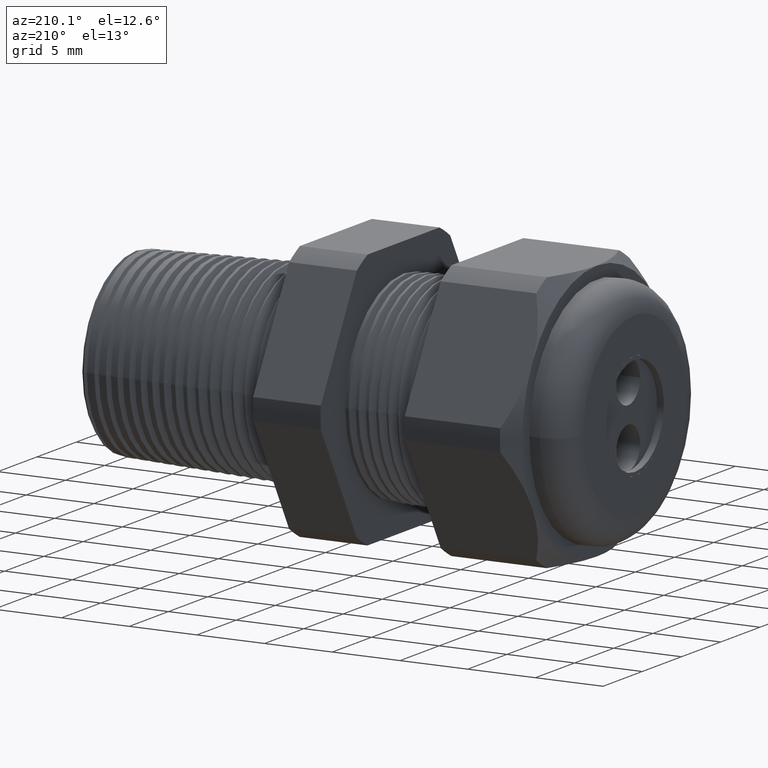
[diagram: clean part render]
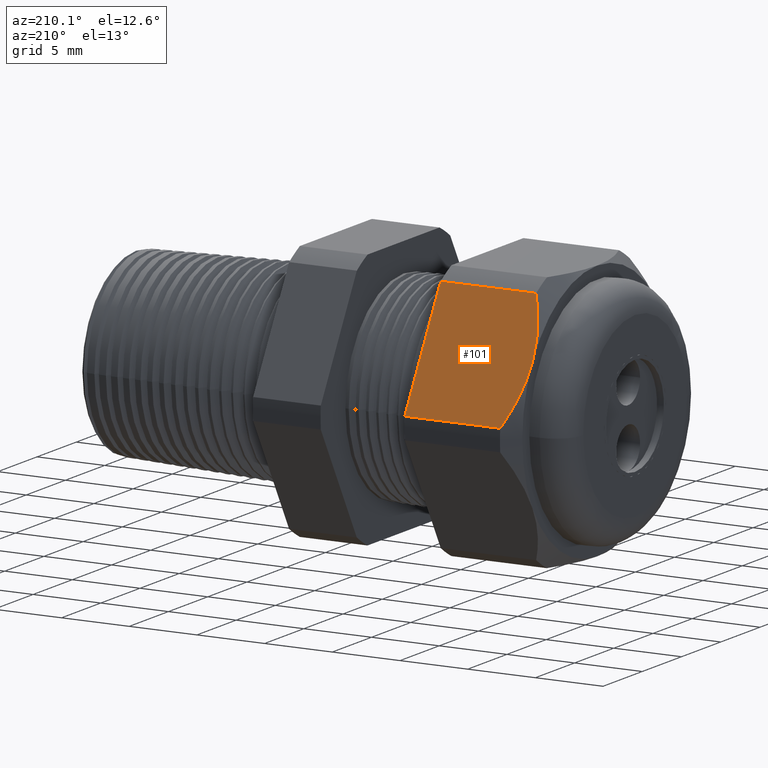
[diagram: same view with one face highlighted and labeled with its STEP entity id]
A machine part, auxiliary view. The second image highlights one B-rep face of the part: STEP entity #101.
In plain terms, the highlighted planar face has unit normal (-0, 0.866, 0.5).
Its self-contained STEP definition (entity closure, byte-faithful):
#101 = ADVANCED_FACE ( 'NONE', ( #1983 ), #1982, .T. ) ;
#102 = EDGE_LOOP ( 'NONE', ( #133, #132, #117, #116, #126 ) ) ;
#104 = VERTEX_POINT ( 'NONE', #2033 ) ;
#106 = EDGE_CURVE ( 'NONE', #113, #104, #2032, .T. ) ;
#113 = VERTEX_POINT ( 'NONE', #2018 ) ;
#116 = ORIENTED_EDGE ( 'NONE', *, *, #106, .F. ) ;
#117 = ORIENTED_EDGE ( 'NONE', *, *, #130, .T. ) ;
#124 = VERTEX_POINT ( 'NONE', #2060 ) ;
#125 = VERTEX_POINT ( 'NONE', #2054 ) ;
#126 = ORIENTED_EDGE ( 'NONE', *, *, #127, .F. ) ;
#127 = EDGE_CURVE ( 'NONE', #124, #113, #2053, .T. ) ;
#130 = EDGE_CURVE ( 'NONE', #1766, #104, #2048, .T. ) ;
#131 = EDGE_CURVE ( 'NONE', #125, #1766, #2040, .T. ) ;
#132 = ORIENTED_EDGE ( 'NONE', *, *, #131, .T. ) ;
#133 = ORIENTED_EDGE ( 'NONE', *, *, #136, .T. ) ;
#136 = EDGE_CURVE ( 'NONE', #124, #125, #2093, .T. ) ;
#159 = CARTESIAN_POINT ( 'NONE',  ( -1.064926254644834400, 0.3559303281390044900, 0.1335105877085818500 ) ) ;
#160 = CARTESIAN_POINT ( 'NONE',  ( -1.068759730589040800, 0.3404835130999903100, 0.1602652561712734600 ) ) ;
#161 = CARTESIAN_POINT ( 'NONE',  ( -1.062104445229484800, 0.3635409529853225200, 0.1203285987974131000 ) ) ;
#162 = CARTESIAN_POINT ( 'NONE',  ( -1.069763779527559000, 0.3247595264191647200, 0.1875000000000001400 ) ) ;
#163 = CARTESIAN_POINT ( 'NONE',  ( -1.069763779527558500, 0.3325797762507456400, 0.1739549299638195900 ) ) ;
#1766 = VERTEX_POINT ( 'NONE', #4971 ) ;
#1977 = DIRECTION ( 'NONE',  ( 0.0000000000000000000, -0.5000000000000000000, 0.8660254037844386000 ) ) ;
#1978 = DIRECTION ( 'NONE',  ( -0.0000000000000000000, 0.8660254037844387100, 0.5000000000000001100 ) ) ;
#1979 = CARTESIAN_POINT ( 'NONE',  ( 0.2800000000000001400, 0.2344281053908204600, 0.3439586107409878200 ) ) ;
#1981 = AXIS2_PLACEMENT_3D ( 'NONE', #1979, #1978, #1977 ) ;
#1982 = PLANE ( 'NONE',  #1981 ) ;
#1983 = FACE_OUTER_BOUND ( 'NONE', #102, .T. ) ;
#2018 = CARTESIAN_POINT ( 'NONE',  ( -0.7508661417322833900, 0.2344281053908204600, 0.3439586107409878200 ) ) ;
#2029 = DIRECTION ( 'NONE',  ( -1.000000000000000000, -0.0000000000000000000, -0.0000000000000000000 ) ) ;
#2030 = VECTOR ( 'NONE', #2029, 39.37007874015748100 ) ;
#2031 = CARTESIAN_POINT ( 'NONE',  ( 0.2800000000000001400, 0.2344281053908204600, 0.3439586107409878200 ) ) ;
#2032 = LINE ( 'NONE', #2031, #2030 ) ;
#2033 = CARTESIAN_POINT ( 'NONE',  ( -1.028513779527559200, 0.2344281053908204600, 0.3439586107409878200 ) ) ;
#2037 = CARTESIAN_POINT ( 'NONE',  ( -1.051298346633054300, 0.3860811521420284800, 0.08128782864527749100 ) ) ;
#2038 = CARTESIAN_POINT ( 'NONE',  ( -1.040987746498826600, 0.4007208404219566000, 0.05593114473747132200 ) ) ;
#2039 = CARTESIAN_POINT ( 'NONE',  ( -1.028513779527559200, 0.4150909474475088000, 0.03104138925901233800 ) ) ;
#2040 = B_SPLINE_CURVE_WITH_KNOTS ( 'NONE', 3,
 ( #2039, #2038, #2037, #161, #159, #160, #163, #162 ),
 .UNSPECIFIED., .F., .F.,
 ( 4, 2, 2, 4 ),
 ( 2.483253706014355700E-007, 0.002355112334987627000, 0.003532544339796142100, 0.004709976344604656700 ),
 .UNSPECIFIED. ) ;
#2042 = CARTESIAN_POINT ( 'NONE',  ( -1.028513779527559200, 0.2344281053908204600, 0.3439586107409878200 ) ) ;
#2043 = CARTESIAN_POINT ( 'NONE',  ( -1.041003202145915500, 0.2488160174420976400, 0.3190380160533432000 ) ) ;
#2044 = CARTESIAN_POINT ( 'NONE',  ( -1.051459219999149700, 0.2636869420682234100, 0.2932808190453658500 ) ) ;
#2045 = CARTESIAN_POINT ( 'NONE',  ( -1.065817769005222600, 0.2938118100972368900, 0.2411030170478075700 ) ) ;
#2046 = CARTESIAN_POINT ( 'NONE',  ( -1.069763779527558500, 0.3091297520026594600, 0.2145715634002271500 ) ) ;
#2047 = CARTESIAN_POINT ( 'NONE',  ( -1.069763779527559000, 0.3247595264191647200, 0.1875000000000001400 ) ) ;
#2048 = B_SPLINE_CURVE_WITH_KNOTS ( 'NONE', 3,
 ( #2047, #2046, #2045, #2044, #2043, #2042 ),
 .UNSPECIFIED., .F., .F.,
 ( 4, 2, 4 ),
 ( 0.004709976344604656700, 0.007063225540252126300, 0.009416474735899595800 ),
 .UNSPECIFIED. ) ;
#2050 = DIRECTION ( 'NONE',  ( -1.617262533114962600E-018, -0.5000000000000000000, 0.8660254037844386000 ) ) ;
#2051 = VECTOR ( 'NONE', #2050, 39.37007874015748900 ) ;
#2052 = CARTESIAN_POINT ( 'NONE',  ( -0.7508661417322833900, 0.3997595264191646200, 0.05759618943233429900 ) ) ;
#2053 = LINE ( 'NONE', #2052, #2051 ) ;
#2054 = CARTESIAN_POINT ( 'NONE',  ( -1.028513779527559200, 0.4150909474475088000, 0.03104138925901233800 ) ) ;
#2060 = CARTESIAN_POINT ( 'NONE',  ( -0.7508661417322833900, 0.4150909474475088000, 0.03104138925901233800 ) ) ;
#2090 = DIRECTION ( 'NONE',  ( -1.000000000000000000, -0.0000000000000000000, -0.0000000000000000000 ) ) ;
#2091 = VECTOR ( 'NONE', #2090, 39.37007874015748100 ) ;
#2092 = CARTESIAN_POINT ( 'NONE',  ( 0.2800000000000001400, 0.4150909474475088000, 0.03104138925901233800 ) ) ;
#2093 = LINE ( 'NONE', #2092, #2091 ) ;
#4971 = CARTESIAN_POINT ( 'NONE',  ( -1.069763779527559000, 0.3247595264191647200, 0.1875000000000001400 ) ) ;